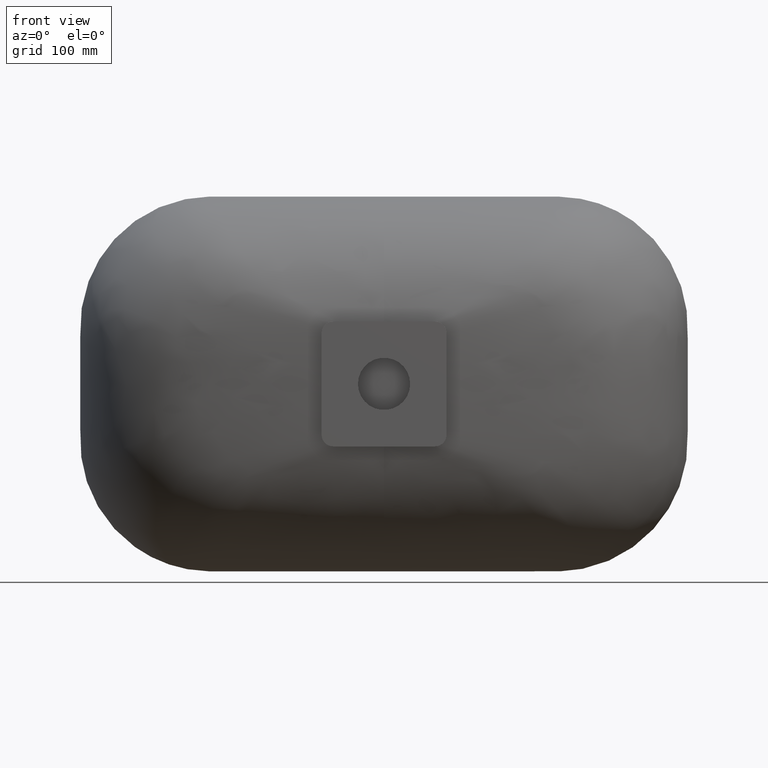
[diagram: clean part render]
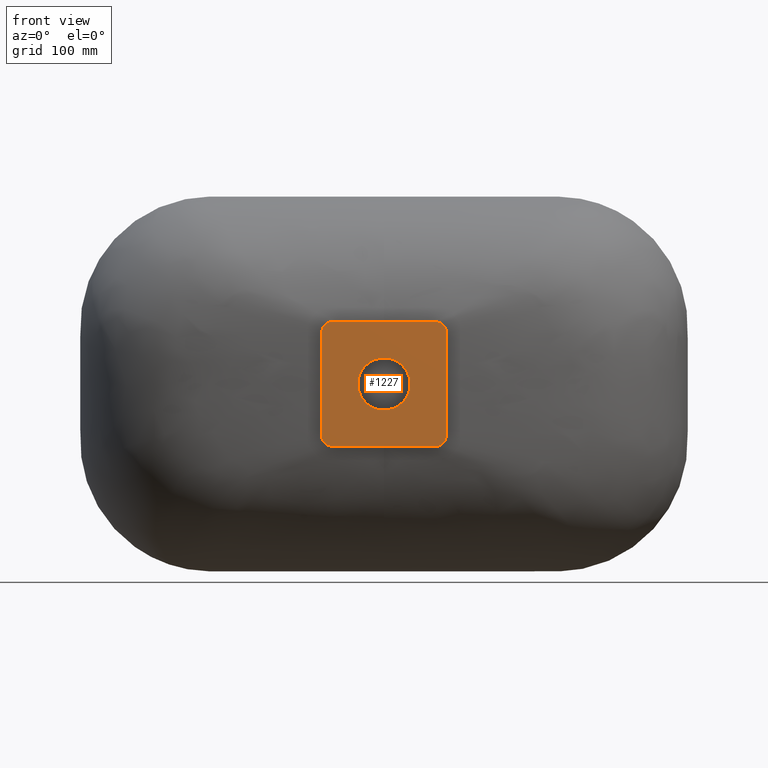
[diagram: same view with one face highlighted and labeled with its STEP entity id]
A machine part, front view. The second image highlights one B-rep face of the part: STEP entity #1227.
In plain terms, the highlighted planar face has unit normal (0, -1, 0).
Its self-contained STEP definition (entity closure, byte-faithful):
#34 = VERTEX_POINT ( 'NONE', #3680 ) ;
#44 = CARTESIAN_POINT ( 'NONE',  ( -44.99999999999982200, -141.0000000000011900, 44.99999999999976600 ) ) ;
#178 = CARTESIAN_POINT ( 'NONE',  ( 45.00000000000016300, -140.9999999999986900, -55.00000000000020600 ) ) ;
#210 = EDGE_CURVE ( 'NONE', #1507, #3037, #6232, .T. ) ;
#278 = VERTEX_POINT ( 'NONE', #6842 ) ;
#303 = ORIENTED_EDGE ( 'NONE', *, *, #6290, .T. ) ;
#465 = FACE_OUTER_BOUND ( 'NONE', #1109, .T. ) ;
#497 = EDGE_CURVE ( 'NONE', #725, #4139, #5820, .T. ) ;
#681 = DIRECTION ( 'NONE',  ( -1.000000000000000000, -2.775557561562896700E-014, 0.0000000000000000000 ) ) ;
#725 = VERTEX_POINT ( 'NONE', #4524 ) ;
#808 = AXIS2_PLACEMENT_3D ( 'NONE', #44, #4409, #681 ) ;
#852 = DIRECTION ( 'NONE',  ( 2.867289048822921000E-014, -1.000000000000000000, 9.100188726435675100E-016 ) ) ;
#902 = EDGE_CURVE ( 'NONE', #34, #3751, #3786, .T. ) ;
#1109 = EDGE_LOOP ( 'NONE', ( #4015, #5694, #7243, #4499, #303, #5313, #1565, #7960 ) ) ;
#1116 = EDGE_CURVE ( 'NONE', #2371, #1507, #2114, .T. ) ;
#1132 = CARTESIAN_POINT ( 'NONE',  ( 55.00000000000015600, -140.9999999999983200, 44.99999999999976600 ) ) ;
#1227 = ADVANCED_FACE ( 'NONE', ( #465, #5228 ), #3316, .T. ) ;
#1300 = DIRECTION ( 'NONE',  ( 2.867289048822921000E-014, -1.000000000000000000, 9.100188726435675100E-016 ) ) ;
#1483 = ORIENTED_EDGE ( 'NONE', *, *, #497, .F. ) ;
#1507 = VERTEX_POINT ( 'NONE', #5865 ) ;
#1565 = ORIENTED_EDGE ( 'NONE', *, *, #4353, .T. ) ;
#1757 = CARTESIAN_POINT ( 'NONE',  ( -54.99999999999981500, -141.0000000000015300, -45.00000000000024900 ) ) ;
#1976 = EDGE_LOOP ( 'NONE', ( #2494, #1483 ) ) ;
#2042 = AXIS2_PLACEMENT_3D ( 'NONE', #5037, #1300, #5662 ) ;
#2077 = DIRECTION ( 'NONE',  ( 2.867289048822921000E-014, -1.000000000000000000, 9.100188726435675100E-016 ) ) ;
#2114 = CIRCLE ( 'NONE', #3874, 9.999999999999994700 ) ;
#2265 = CARTESIAN_POINT ( 'NONE',  ( -54.99999999999982900, -141.0000000000014500, 44.99999999999975100 ) ) ;
#2312 = CARTESIAN_POINT ( 'NONE',  ( 45.00000000000014900, -140.9999999999986100, 54.99999999999973700 ) ) ;
#2371 = VERTEX_POINT ( 'NONE', #1132 ) ;
#2372 = EDGE_CURVE ( 'NONE', #6779, #278, #4459, .T. ) ;
#2494 = ORIENTED_EDGE ( 'NONE', *, *, #4598, .F. ) ;
#2783 = VECTOR ( 'NONE', #8028, 1000.000000000000000 ) ;
#3037 = VERTEX_POINT ( 'NONE', #7498 ) ;
#3187 = CIRCLE ( 'NONE', #6992, 9.999999999999987600 ) ;
#3226 = VERTEX_POINT ( 'NONE', #4423 ) ;
#3316 = PLANE ( 'NONE',  #6772 ) ;
#3346 = DIRECTION ( 'NONE',  ( 1.000000000000000000, 2.867289048822921000E-014, 0.0000000000000000000 ) ) ;
#3377 = VECTOR ( 'NONE', #5797, 1000.000000000000000 ) ;
#3388 = CARTESIAN_POINT ( 'NONE',  ( -44.99999999999982200, -141.0000000000012500, -45.00000000000022700 ) ) ;
#3419 = CARTESIAN_POINT ( 'NONE',  ( 3.899513106399171800E-012, -140.9999999999999400, -1.179795435211134700E-013 ) ) ;
#3594 = LINE ( 'NONE', #6425, #3377 ) ;
#3680 = CARTESIAN_POINT ( 'NONE',  ( 45.00000000000016300, -140.9999999999986900, -55.00000000000020600 ) ) ;
#3751 = VERTEX_POINT ( 'NONE', #7648 ) ;
#3786 = CIRCLE ( 'NONE', #4304, 9.999999999999994700 ) ;
#3874 = AXIS2_PLACEMENT_3D ( 'NONE', #4580, #852, #5206 ) ;
#3912 = DIRECTION ( 'NONE',  ( 1.000000000000000000, 2.868076146948322700E-014, 1.541976423090496100E-016 ) ) ;
#3915 = EDGE_CURVE ( 'NONE', #3226, #34, #6920, .T. ) ;
#3939 = CARTESIAN_POINT ( 'NONE',  ( -22.99999999999250400, -141.0000000000006000, -1.193445718300763200E-013 ) ) ;
#4015 = ORIENTED_EDGE ( 'NONE', *, *, #902, .T. ) ;
#4017 = DIRECTION ( 'NONE',  ( -1.000000000000000000, -2.775557561562894800E-014, 0.0000000000000000000 ) ) ;
#4021 = EDGE_CURVE ( 'NONE', #3751, #2371, #3594, .T. ) ;
#4046 = DIRECTION ( 'NONE',  ( 1.000000000000000000, 2.896233977283470300E-014, 0.0000000000000000000 ) ) ;
#4139 = VERTEX_POINT ( 'NONE', #3939 ) ;
#4304 = AXIS2_PLACEMENT_3D ( 'NONE', #5809, #2077, #6438 ) ;
#4353 = EDGE_CURVE ( 'NONE', #278, #3226, #3187, .T. ) ;
#4409 = DIRECTION ( 'NONE',  ( 2.867289048822921000E-014, -1.000000000000000000, 9.100188726435675100E-016 ) ) ;
#4423 = CARTESIAN_POINT ( 'NONE',  ( -44.99999999999978700, -141.0000000000012500, -55.00000000000022000 ) ) ;
#4459 = LINE ( 'NONE', #1757, #2783 ) ;
#4499 = ORIENTED_EDGE ( 'NONE', *, *, #210, .T. ) ;
#4524 = CARTESIAN_POINT ( 'NONE',  ( 23.00000000000030200, -140.9999999999992600, -1.165278841920390500E-013 ) ) ;
#4580 = CARTESIAN_POINT ( 'NONE',  ( 45.00000000000016300, -140.9999999999986100, 44.99999999999976600 ) ) ;
#4598 = EDGE_CURVE ( 'NONE', #4139, #725, #8010, .T. ) ;
#5037 = CARTESIAN_POINT ( 'NONE',  ( 3.899513106399171800E-012, -140.9999999999999400, -1.179795435211134700E-013 ) ) ;
#5206 = DIRECTION ( 'NONE',  ( 1.000000000000000000, 2.775557561562892900E-014, 0.0000000000000000000 ) ) ;
#5228 = FACE_BOUND ( 'NONE', #1976, .T. ) ;
#5313 = ORIENTED_EDGE ( 'NONE', *, *, #2372, .T. ) ;
#5407 = AXIS2_PLACEMENT_3D ( 'NONE', #3419, #7808, #4046 ) ;
#5662 = DIRECTION ( 'NONE',  ( 1.000000000000000000, 2.896233977283470300E-014, 0.0000000000000000000 ) ) ;
#5694 = ORIENTED_EDGE ( 'NONE', *, *, #4021, .T. ) ;
#5797 = DIRECTION ( 'NONE',  ( -1.541976423090495400E-016, 9.251858538542971800E-016, 1.000000000000000000 ) ) ;
#5809 = CARTESIAN_POINT ( 'NONE',  ( 45.00000000000016300, -140.9999999999986900, -45.00000000000023400 ) ) ;
#5820 = CIRCLE ( 'NONE', #2042, 22.99999999999640100 ) ;
#5837 = CARTESIAN_POINT ( 'NONE',  ( 45.00000000000016300, -140.9999999999986900, -45.00000000000023400 ) ) ;
#5865 = CARTESIAN_POINT ( 'NONE',  ( 45.00000000000014900, -140.9999999999986100, 54.99999999999973700 ) ) ;
#6232 = LINE ( 'NONE', #2312, #8111 ) ;
#6290 = EDGE_CURVE ( 'NONE', #3037, #6779, #7512, .T. ) ;
#6425 = CARTESIAN_POINT ( 'NONE',  ( 55.00000000000018500, -140.9999999999984100, -45.00000000000023400 ) ) ;
#6438 = DIRECTION ( 'NONE',  ( 1.000000000000000000, 2.775557561562892900E-014, 0.0000000000000000000 ) ) ;
#6722 = VECTOR ( 'NONE', #3912, 1000.000000000000000 ) ;
#6772 = AXIS2_PLACEMENT_3D ( 'NONE', #5837, #7100, #3346 ) ;
#6779 = VERTEX_POINT ( 'NONE', #2265 ) ;
#6842 = CARTESIAN_POINT ( 'NONE',  ( -54.99999999999982200, -141.0000000000015300, -45.00000000000024900 ) ) ;
#6920 = LINE ( 'NONE', #178, #6722 ) ;
#6992 = AXIS2_PLACEMENT_3D ( 'NONE', #3388, #7778, #4017 ) ;
#7100 = DIRECTION ( 'NONE',  ( 2.867289048822921000E-014, -1.000000000000000000, 9.100188726435675100E-016 ) ) ;
#7243 = ORIENTED_EDGE ( 'NONE', *, *, #1116, .T. ) ;
#7313 = DIRECTION ( 'NONE',  ( -1.000000000000000000, -2.868076146948322700E-014, -1.541976423090496100E-016 ) ) ;
#7498 = CARTESIAN_POINT ( 'NONE',  ( -44.99999999999980800, -141.0000000000011900, 54.99999999999974400 ) ) ;
#7512 = CIRCLE ( 'NONE', #808, 9.999999999999980500 ) ;
#7648 = CARTESIAN_POINT ( 'NONE',  ( 55.00000000000018500, -140.9999999999984100, -45.00000000000023400 ) ) ;
#7778 = DIRECTION ( 'NONE',  ( 2.867289048822921000E-014, -1.000000000000000000, 9.100188726435675100E-016 ) ) ;
#7808 = DIRECTION ( 'NONE',  ( 2.867289048822921000E-014, -1.000000000000000000, 9.100188726435675100E-016 ) ) ;
#7960 = ORIENTED_EDGE ( 'NONE', *, *, #3915, .T. ) ;
#8010 = CIRCLE ( 'NONE', #5407, 22.99999999999640100 ) ;
#8028 = DIRECTION ( 'NONE',  ( 1.541976423090495400E-016, -9.251858538542971800E-016, -1.000000000000000000 ) ) ;
#8111 = VECTOR ( 'NONE', #7313, 1000.000000000000000 ) ;